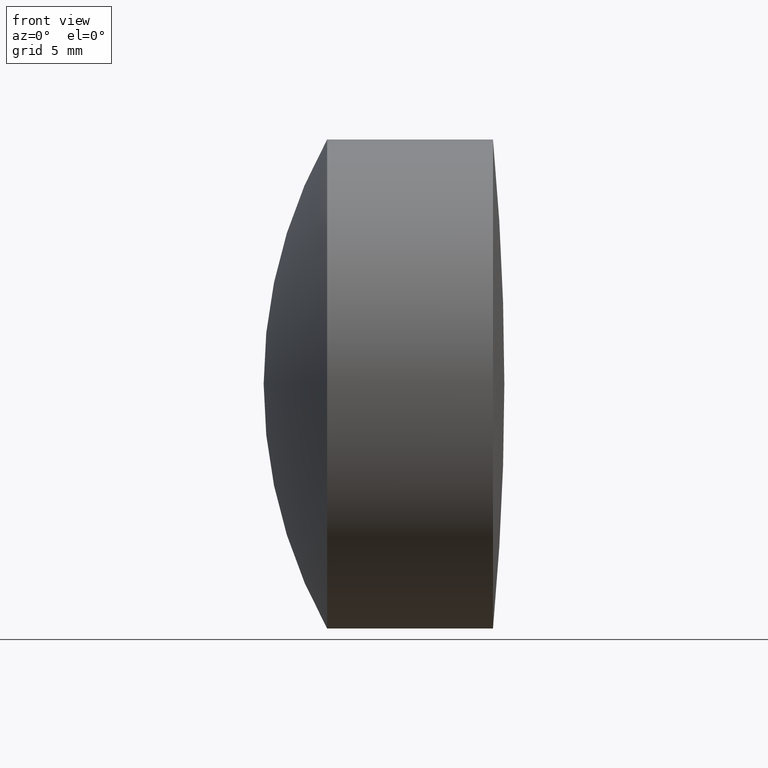
[diagram: clean part render]
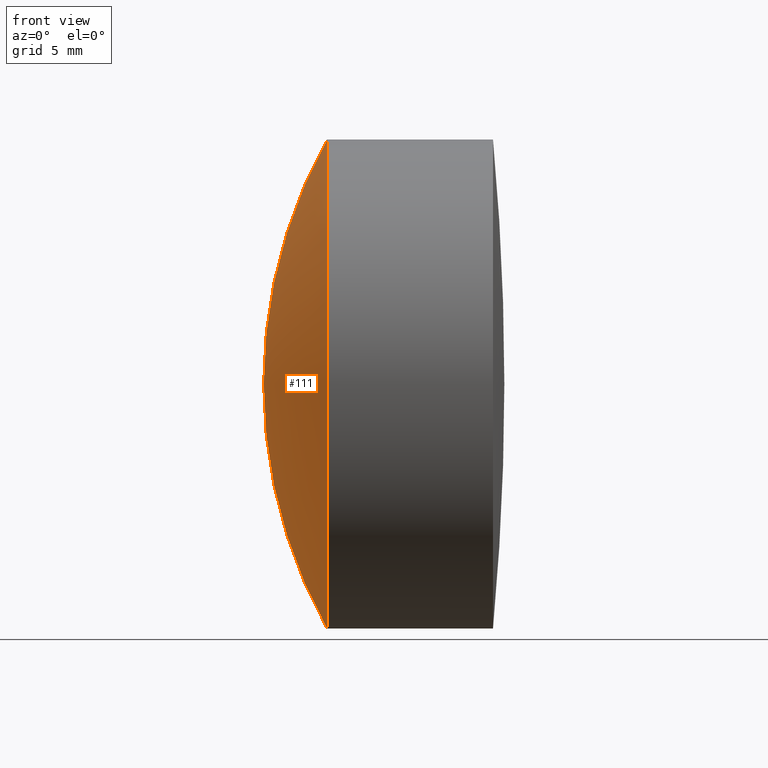
[diagram: same view with one face highlighted and labeled with its STEP entity id]
A machine part, front view. The second image highlights one B-rep face of the part: STEP entity #111.
In plain terms, the highlighted spherical surface has radius 26.12 mm.
Its self-contained STEP definition (entity closure, byte-faithful):
#10 = ORIENTED_EDGE ( 'NONE', *, *, #284, .T. ) ;
#20 = CARTESIAN_POINT ( 'NONE',  ( 279.0543419790191700, -1.555301434917138400E-015, 12.70000000000001000 ) ) ;
#44 = CARTESIAN_POINT ( 'NONE',  ( 279.0543419790191700, 0.0000000000000000000, -12.69999999999999900 ) ) ;
#48 = EDGE_LOOP ( 'NONE', ( #10, #158, #339 ) ) ;
#56 = DIRECTION ( 'NONE',  ( 0.0000000000000000000, 1.224646799147353200E-016, -1.000000000000000000 ) ) ;
#58 = FACE_OUTER_BOUND ( 'NONE', #48, .T. ) ;
#59 = EDGE_CURVE ( 'NONE', #224, #142, #273, .T. ) ;
#94 = DIRECTION ( 'NONE',  ( 0.0000000000000000000, 1.000000000000000000, -0.0000000000000000000 ) ) ;
#95 = VERTEX_POINT ( 'NONE', #44 ) ;
#99 = AXIS2_PLACEMENT_3D ( 'NONE', #237, #104, #120 ) ;
#104 = DIRECTION ( 'NONE',  ( -0.0000000000000000000, -1.000000000000000000, -0.0000000000000000000 ) ) ;
#111 = ADVANCED_FACE ( 'NONE', ( #58 ), #152, .T. ) ;
#120 = DIRECTION ( 'NONE',  ( 0.0000000000000000000, 0.0000000000000000000, -1.000000000000000000 ) ) ;
#142 = VERTEX_POINT ( 'NONE', #215 ) ;
#152 = SPHERICAL_SURFACE ( 'NONE', #99, 26.11999999999998300 ) ;
#158 = ORIENTED_EDGE ( 'NONE', *, *, #59, .T. ) ;
#162 = AXIS2_PLACEMENT_3D ( 'NONE', #246, #322, #184 ) ;
#178 = CARTESIAN_POINT ( 'NONE',  ( 301.8789865545651300, 0.0000000000000000000, 8.762794518350186300E-015 ) ) ;
#184 = DIRECTION ( 'NONE',  ( 0.0000000000000000000, 0.0000000000000000000, 1.000000000000000000 ) ) ;
#215 = CARTESIAN_POINT ( 'NONE',  ( 275.7589865545651800, 0.0000000000000000000, 7.163405798663743900E-015 ) ) ;
#218 = EDGE_CURVE ( 'NONE', #95, #142, #287, .T. ) ;
#224 = VERTEX_POINT ( 'NONE', #20 ) ;
#237 = CARTESIAN_POINT ( 'NONE',  ( 301.8789865545651300, 0.0000000000000000000, 8.762794518350186300E-015 ) ) ;
#246 = CARTESIAN_POINT ( 'NONE',  ( 279.0543419790191700, 0.0000000000000000000, 0.0000000000000000000 ) ) ;
#260 = CIRCLE ( 'NONE', #162, 12.70000000000000800 ) ;
#273 = CIRCLE ( 'NONE', #310, 26.11999999999998300 ) ;
#284 = EDGE_CURVE ( 'NONE', #95, #224, #260, .T. ) ;
#286 = AXIS2_PLACEMENT_3D ( 'NONE', #178, #94, #296 ) ;
#287 = CIRCLE ( 'NONE', #286, 26.11999999999998300 ) ;
#296 = DIRECTION ( 'NONE',  ( 0.0000000000000000000, 0.0000000000000000000, 1.000000000000000000 ) ) ;
#310 = AXIS2_PLACEMENT_3D ( 'NONE', #342, #319, #56 ) ;
#319 = DIRECTION ( 'NONE',  ( 0.0000000000000000000, -1.000000000000000000, -1.224646799147353200E-016 ) ) ;
#322 = DIRECTION ( 'NONE',  ( -1.000000000000000000, -0.0000000000000000000, -0.0000000000000000000 ) ) ;
#339 = ORIENTED_EDGE ( 'NONE', *, *, #218, .F. ) ;
#342 = CARTESIAN_POINT ( 'NONE',  ( 301.8789865545651300, 0.0000000000000000000, 8.762794518350186300E-015 ) ) ;